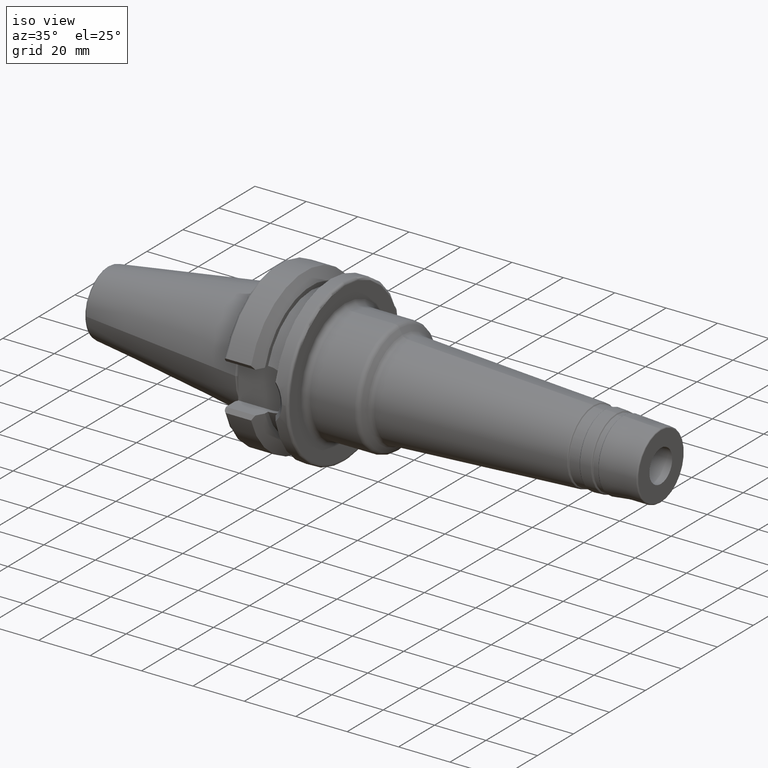
[diagram: clean part render]
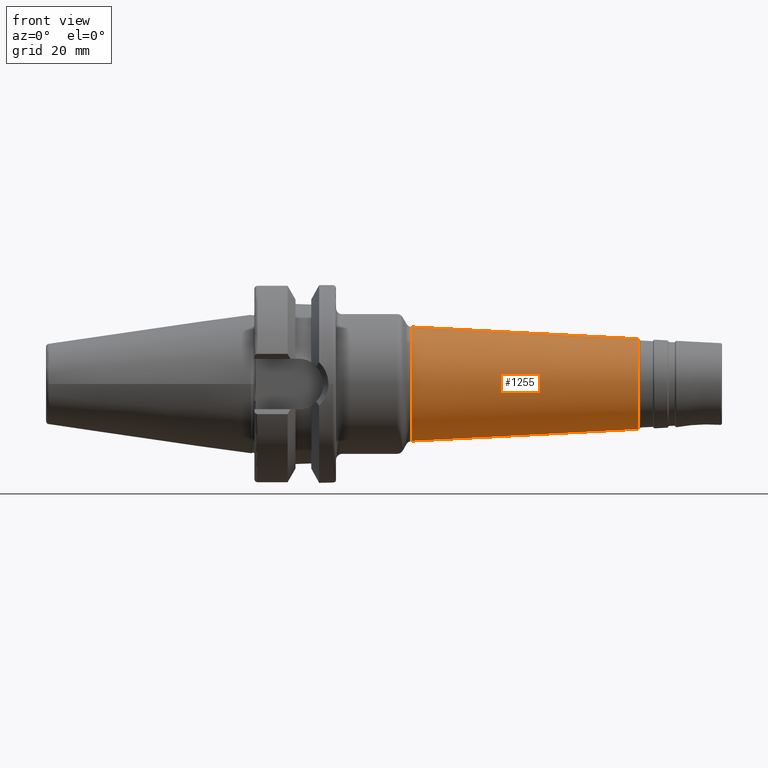
[diagram: tour spotlight — one face highlighted and labeled with its STEP entity id]
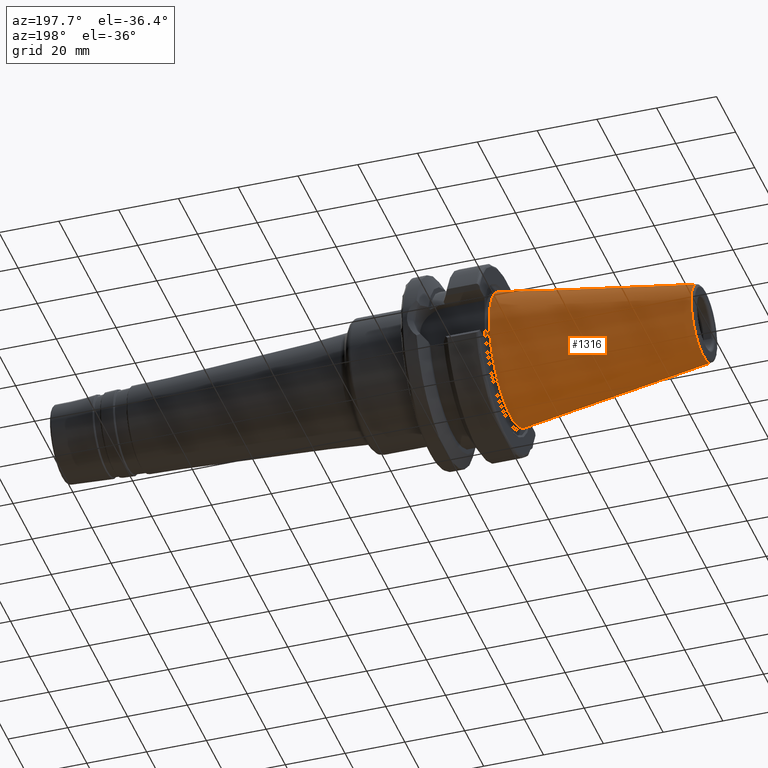
[diagram: tour spotlight — one face highlighted and labeled with its STEP entity id]
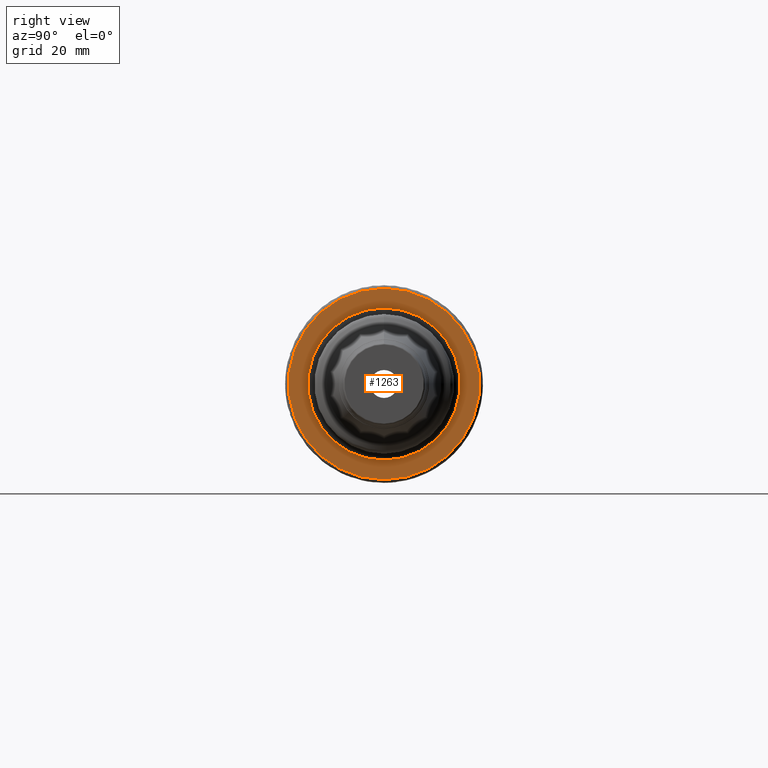
[diagram: tour spotlight — one face highlighted and labeled with its STEP entity id]
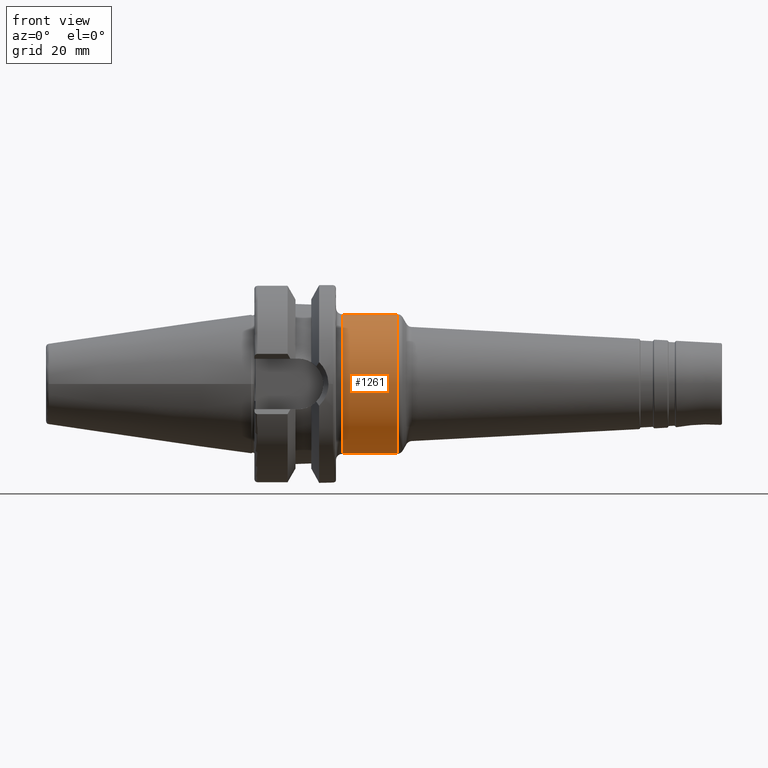
[diagram: tour spotlight — one face highlighted and labeled with its STEP entity id]
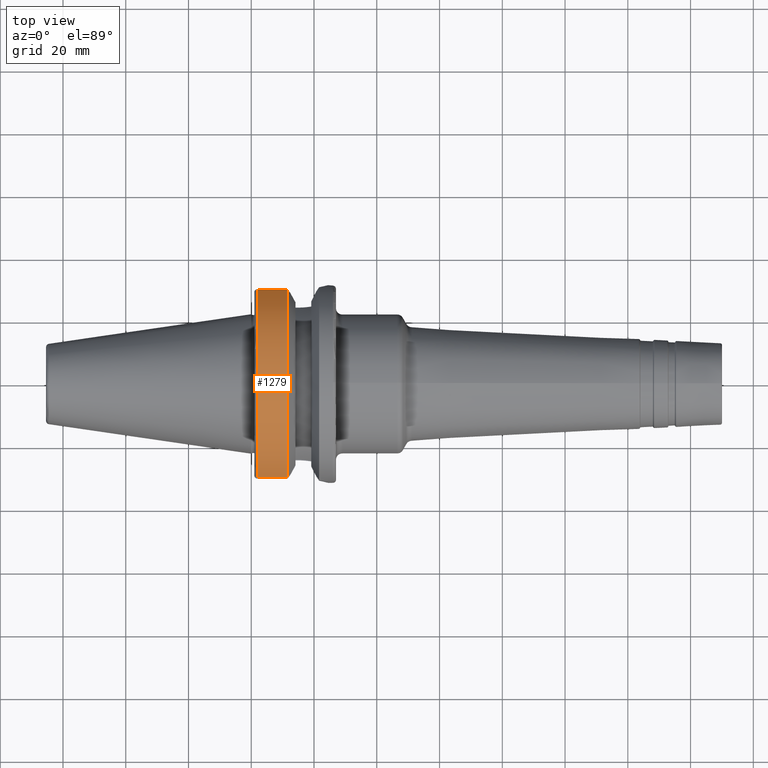
[diagram: tour spotlight — one face highlighted and labeled with its STEP entity id]
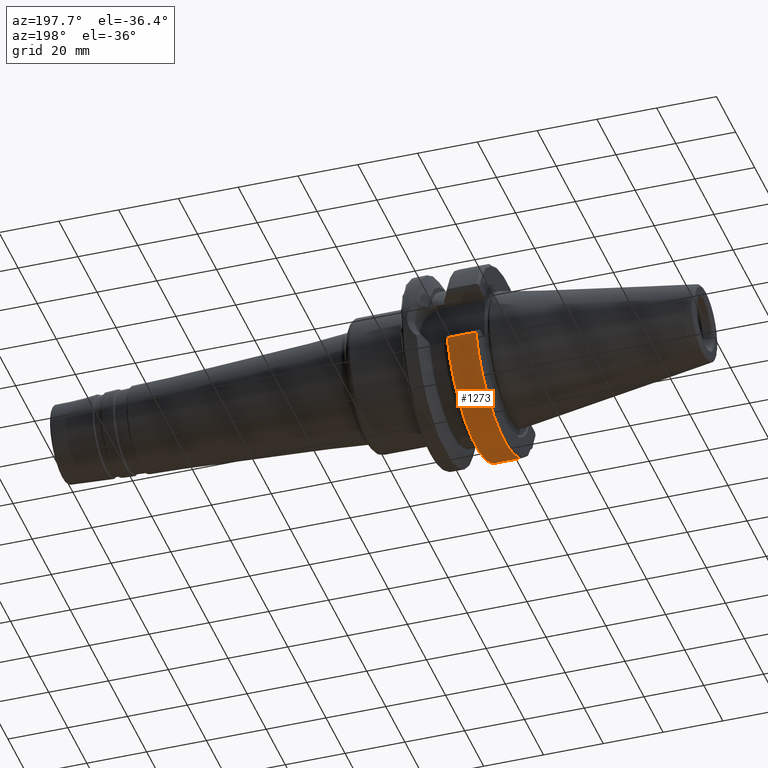
[diagram: tour spotlight — one face highlighted and labeled with its STEP entity id]
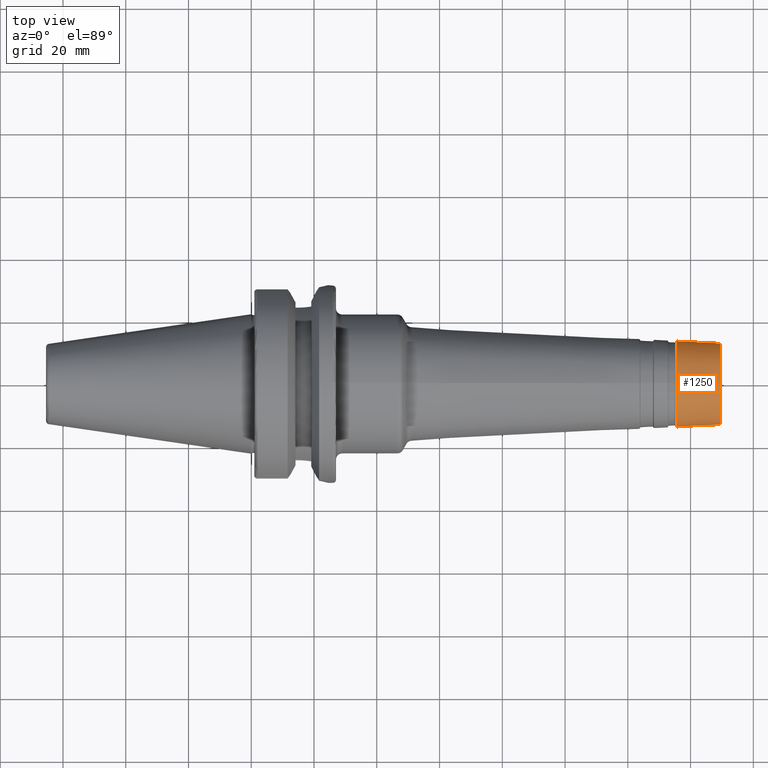
[diagram: tour spotlight — one face highlighted and labeled with its STEP entity id]
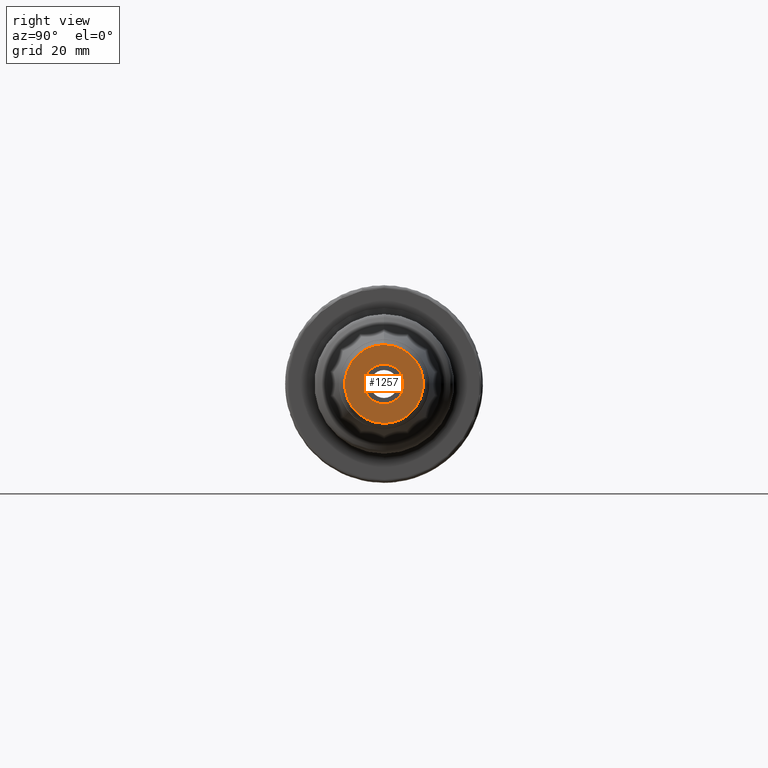
[diagram: tour spotlight — one face highlighted and labeled with its STEP entity id]
A machine part: a face-by-face anatomy tour. The part has 81 B-rep faces; the first image is the clean iso view, then the 8 largest visible faces are spotlighted one at a time (largest first), each with its STEP entity span.

Face 1 — front view, entity #1255. In plain terms, the highlighted conical surface has half-angle 3 deg.
Definition (entity closure, byte-faithful):
#104=LINE('',#1999,#173);
#173=VECTOR('',#1609,16.3081634099065);
#242=CONICAL_SURFACE('',#1384,16.3081634099065,0.0523598775598295);
#271=FACE_OUTER_BOUND('',#352,.T.);
#352=EDGE_LOOP('',(#895,#896,#897,#898));
#447=CIRCLE('',#1383,14.387635362879);
#448=CIRCLE('',#1385,18.1839457168278);
#532=VERTEX_POINT('',#1994);
#533=VERTEX_POINT('',#1998);
#668=EDGE_CURVE('',#532,#532,#447,.T.);
#669=EDGE_CURVE('',#532,#533,#104,.T.);
#670=EDGE_CURVE('',#533,#533,#448,.T.);
#895=ORIENTED_EDGE('',*,*,#668,.F.);
#896=ORIENTED_EDGE('',*,*,#669,.T.);
#897=ORIENTED_EDGE('',*,*,#670,.F.);
#898=ORIENTED_EDGE('',*,*,#669,.F.);
#1255=ADVANCED_FACE('',(#271),#242,.T.);
#1383=AXIS2_PLACEMENT_3D('',#1996,#1605,#1606);
#1384=AXIS2_PLACEMENT_3D('',#1997,#1607,#1608);
#1385=AXIS2_PLACEMENT_3D('',#2000,#1610,#1611);
#1605=DIRECTION('center_axis',(1.,0.,0.));
#1606=DIRECTION('ref_axis',(0.,0.,1.));
#1607=DIRECTION('center_axis',(-1.,0.,0.));
#1608=DIRECTION('ref_axis',(0.,0.,-1.));
#1609=DIRECTION('',(-0.998629534754574,-6.40930612932367E-18,0.0523359562429435));
#1610=DIRECTION('center_axis',(-1.,0.,0.));
#1611=DIRECTION('ref_axis',(0.,0.,1.));
#1994=CARTESIAN_POINT('',(123.522339968181,-1.7619771594449E-15,14.387635362879));
#1996=CARTESIAN_POINT('Origin',(123.522339968181,-1.7619771594449E-15,0.));
#1997=CARTESIAN_POINT('Origin',(86.8764817902327,0.,0.));
#1998=CARTESIAN_POINT('',(51.0844231954446,-2.22689109179824E-15,18.1839457168278));
#1999=CARTESIAN_POINT('',(86.8764817902327,-1.9971740119914E-15,16.3081634099065));
#2000=CARTESIAN_POINT('Origin',(51.0844231954446,-2.22689109179824E-15,
0.));

Face 2 — auxiliary view, entity #1316. In plain terms, the highlighted conical surface has half-angle 8.297 deg.
Definition (entity closure, byte-faithful):
#162=LINE('',#2567,#231);
#231=VECTOR('',#1913,17.5186442890469);
#253=CONICAL_SURFACE('',#1506,17.5186442890469,0.144812498238939);
#332=FACE_OUTER_BOUND('',#419,.T.);
#419=EDGE_LOOP('',(#1200,#1201,#1202,#1203,#1204));
#508=CIRCLE('',#1503,12.8122885780937);
#509=CIRCLE('',#1504,12.8122885780937);
#511=CIRCLE('',#1507,22.225);
#630=VERTEX_POINT('',#2559);
#631=VERTEX_POINT('',#2560);
#632=VERTEX_POINT('',#2565);
#820=EDGE_CURVE('',#630,#631,#508,.T.);
#821=EDGE_CURVE('',#631,#630,#509,.T.);
#823=EDGE_CURVE('',#632,#632,#511,.T.);
#824=EDGE_CURVE('',#632,#630,#162,.T.);
#1200=ORIENTED_EDGE('',*,*,#823,.F.);
#1201=ORIENTED_EDGE('',*,*,#824,.T.);
#1202=ORIENTED_EDGE('',*,*,#820,.T.);
#1203=ORIENTED_EDGE('',*,*,#821,.T.);
#1204=ORIENTED_EDGE('',*,*,#824,.F.);
#1316=ADVANCED_FACE('',(#332),#253,.T.);
#1503=AXIS2_PLACEMENT_3D('',#2561,#1903,#1904);
#1504=AXIS2_PLACEMENT_3D('',#2562,#1905,#1906);
#1506=AXIS2_PLACEMENT_3D('',#2564,#1909,#1910);
#1507=AXIS2_PLACEMENT_3D('',#2566,#1911,#1912);
#1903=DIRECTION('center_axis',(1.,0.,0.));
#1904=DIRECTION('ref_axis',(0.,0.,-1.));
#1905=DIRECTION('center_axis',(1.,0.,0.));
#1906=DIRECTION('ref_axis',(0.,0.,-1.));
#1909=DIRECTION('center_axis',(1.,0.,0.));
#1910=DIRECTION('ref_axis',(0.,1.,0.));
#1911=DIRECTION('center_axis',(1.,0.,0.));
#1912=DIRECTION('ref_axis',(0.,0.,-1.));
#1913=DIRECTION('',(-0.989532981063281,0.144306893071729,1.76724974695192E-17));
#2559=CARTESIAN_POINT('',(-64.5443068930717,-12.8122885780937,-1.56905281969147E-15));
#2560=CARTESIAN_POINT('',(-64.5443068930717,-1.56905281969147E-15,12.8122885780937));
#2561=CARTESIAN_POINT('Origin',(-64.5443068930717,0.,0.));
#2562=CARTESIAN_POINT('Origin',(-64.5443068930717,0.,0.));
#2564=CARTESIAN_POINT('Origin',(-32.2721534465359,0.,0.));
#2565=CARTESIAN_POINT('',(4.44089209850063E-15,-22.225,-2.72177751110499E-15));
#2566=CARTESIAN_POINT('Origin',(0.,0.,0.));
#2567=CARTESIAN_POINT('',(-32.2721534465359,-17.5186442890469,-2.14541516539823E-15));

Face 3 — right view, entity #1263. In plain terms, the highlighted planar face has unit normal (1, 0, 0).
Definition (entity closure, byte-faithful):
#67=FACE_BOUND('',#362,.T.);
#73=PLANE('',#1405);
#279=FACE_OUTER_BOUND('',#361,.T.);
#361=EDGE_LOOP('',(#927));
#362=EDGE_LOOP('',(#928));
#460=CIRCLE('',#1404,24.25);
#461=CIRCLE('',#1406,30.5);
#541=VERTEX_POINT('',#2027);
#542=VERTEX_POINT('',#2031);
#684=EDGE_CURVE('',#541,#541,#460,.T.);
#685=EDGE_CURVE('',#542,#542,#461,.T.);
#927=ORIENTED_EDGE('',*,*,#685,.T.);
#928=ORIENTED_EDGE('',*,*,#684,.F.);
#1263=ADVANCED_FACE('',(#279,#67),#73,.T.);
#1404=AXIS2_PLACEMENT_3D('',#2029,#1650,#1651);
#1405=AXIS2_PLACEMENT_3D('',#2030,#1652,#1653);
#1406=AXIS2_PLACEMENT_3D('',#2032,#1654,#1655);
#1650=DIRECTION('center_axis',(1.,0.,0.));
#1651=DIRECTION('ref_axis',(0.,-1.22464679914735E-16,1.));
#1652=DIRECTION('center_axis',(1.,0.,0.));
#1653=DIRECTION('ref_axis',(0.,0.,-1.));
#1654=DIRECTION('center_axis',(1.,0.,0.));
#1655=DIRECTION('ref_axis',(0.,0.,-1.));
#2027=CARTESIAN_POINT('',(27.,5.93953697586466E-15,-24.25));
#2029=CARTESIAN_POINT('Origin',(27.,0.,0.));
#2030=CARTESIAN_POINT('Origin',(27.,0.,0.));
#2031=CARTESIAN_POINT('',(27.,-3.73517273739943E-15,30.5));
#2032=CARTESIAN_POINT('Origin',(27.,0.,0.));

Face 4 — front view, entity #1261. In plain terms, the highlighted cylindrical surface (bore or boss wall) has radius 22.25 mm, axis along (1, 0, 0).
Definition (entity closure, byte-faithful):
#50=CYLINDRICAL_SURFACE('',#1399,22.25);
#106=LINE('',#2022,#175);
#175=VECTOR('',#1641,22.25);
#277=FACE_OUTER_BOUND('',#359,.T.);
#359=EDGE_LOOP('',(#917,#918,#919,#920,#921));
#456=CIRCLE('',#1398,22.25);
#457=CIRCLE('',#1400,22.25);
#458=CIRCLE('',#1401,22.25);
#538=VERTEX_POINT('',#2017);
#539=VERTEX_POINT('',#2021);
#540=VERTEX_POINT('',#2023);
#679=EDGE_CURVE('',#538,#538,#456,.T.);
#680=EDGE_CURVE('',#538,#539,#106,.T.);
#681=EDGE_CURVE('',#540,#539,#457,.T.);
#682=EDGE_CURVE('',#539,#540,#458,.T.);
#917=ORIENTED_EDGE('',*,*,#679,.F.);
#918=ORIENTED_EDGE('',*,*,#680,.T.);
#919=ORIENTED_EDGE('',*,*,#681,.F.);
#920=ORIENTED_EDGE('',*,*,#682,.F.);
#921=ORIENTED_EDGE('',*,*,#680,.F.);
#1261=ADVANCED_FACE('',(#277),#50,.T.);
#1398=AXIS2_PLACEMENT_3D('',#2019,#1637,#1638);
#1399=AXIS2_PLACEMENT_3D('',#2020,#1639,#1640);
#1400=AXIS2_PLACEMENT_3D('',#2024,#1642,#1643);
#1401=AXIS2_PLACEMENT_3D('',#2025,#1644,#1645);
#1637=DIRECTION('center_axis',(1.,0.,0.));
#1638=DIRECTION('ref_axis',(0.,1.22464679914735E-16,1.));
#1639=DIRECTION('center_axis',(1.,0.,0.));
#1640=DIRECTION('ref_axis',(0.,0.,-1.));
#1641=DIRECTION('',(-1.,0.,0.));
#1642=DIRECTION('center_axis',(-1.,0.,0.));
#1643=DIRECTION('ref_axis',(0.,-1.22464679914735E-16,1.));
#1644=DIRECTION('center_axis',(-1.,0.,0.));
#1645=DIRECTION('ref_axis',(0.,-1.22464679914735E-16,1.));
#2017=CARTESIAN_POINT('',(46.5305740192861,-2.72483912810286E-15,22.25));
#2019=CARTESIAN_POINT('Origin',(46.5305740192861,0.,0.));
#2020=CARTESIAN_POINT('Origin',(37.3426372788327,0.,0.));
#2021=CARTESIAN_POINT('',(29.,-2.72483912810286E-15,22.25));
#2022=CARTESIAN_POINT('',(37.3426372788327,-2.72483912810286E-15,22.25));
#2023=CARTESIAN_POINT('',(29.,0.,-22.25));
#2024=CARTESIAN_POINT('Origin',(29.,0.,0.));
#2025=CARTESIAN_POINT('Origin',(29.,0.,0.));

Face 5 — top view, entity #1279. In plain terms, the highlighted cylindrical surface (partial cylindrical patch) has radius 31.5 mm, axis along (1, 0, 0).
Definition (entity closure, byte-faithful):
#56=CYLINDRICAL_SURFACE('',#1439,31.5);
#118=LINE('',#2247,#187);
#124=LINE('',#2288,#193);
#187=VECTOR('',#1721,10.);
#193=VECTOR('',#1741,10.);
#295=FACE_OUTER_BOUND('',#380,.T.);
#380=EDGE_LOOP('',(#1000,#1001,#1002,#1003));
#479=CIRCLE('',#1438,31.5);
#480=CIRCLE('',#1440,31.5000000000001);
#573=VERTEX_POINT('',#2242);
#574=VERTEX_POINT('',#2246);
#581=VERTEX_POINT('',#2273);
#582=VERTEX_POINT('',#2286);
#725=EDGE_CURVE('',#573,#574,#118,.T.);
#734=EDGE_CURVE('',#581,#574,#479,.T.);
#736=EDGE_CURVE('',#582,#573,#480,.T.);
#737=EDGE_CURVE('',#581,#582,#124,.T.);
#1000=ORIENTED_EDGE('',*,*,#725,.F.);
#1001=ORIENTED_EDGE('',*,*,#736,.F.);
#1002=ORIENTED_EDGE('',*,*,#737,.F.);
#1003=ORIENTED_EDGE('',*,*,#734,.T.);
#1279=ADVANCED_FACE('',(#295),#56,.T.);
#1438=AXIS2_PLACEMENT_3D('',#2274,#1735,#1736);
#1439=AXIS2_PLACEMENT_3D('',#2285,#1737,#1738);
#1440=AXIS2_PLACEMENT_3D('',#2287,#1739,#1740);
#1721=DIRECTION('',(-1.,0.,0.));
#1735=DIRECTION('center_axis',(1.,0.,0.));
#1736=DIRECTION('ref_axis',(0.,0.,-1.));
#1737=DIRECTION('center_axis',(1.,0.,0.));
#1738=DIRECTION('ref_axis',(0.,1.,0.));
#1739=DIRECTION('center_axis',(1.,0.,0.));
#1740=DIRECTION('ref_axis',(0.,0.,-1.));
#1741=DIRECTION('',(1.,0.,0.));
#2242=CARTESIAN_POINT('',(11.5690363073381,-30.0059801089944,9.58598757033588));
#2246=CARTESIAN_POINT('',(1.99999999999999,-30.0059801089944,9.58598757033586));
#2247=CARTESIAN_POINT('',(6.78451815366905,-30.0059801089944,9.58598757033587));
#2273=CARTESIAN_POINT('',(1.99999999999999,30.0059801089944,9.58598757033586));
#2274=CARTESIAN_POINT('Origin',(1.99999999999999,0.,0.));
#2285=CARTESIAN_POINT('Origin',(6.78451815366905,0.,0.));
#2286=CARTESIAN_POINT('',(11.5690363073381,30.0059801089944,9.58598757033588));
#2287=CARTESIAN_POINT('Origin',(11.5690363073381,0.,0.));
#2288=CARTESIAN_POINT('',(6.78451815366905,30.0059801089944,9.58598757033587));

Face 6 — auxiliary view, entity #1273. In plain terms, the highlighted cylindrical surface (partial cylindrical patch) has radius 31.5 mm, axis along (1, 0, 0).
Definition (entity closure, byte-faithful):
#55=CYLINDRICAL_SURFACE('',#1426,31.5);
#111=LINE('',#2205,#180);
#114=LINE('',#2217,#183);
#180=VECTOR('',#1698,10.);
#183=VECTOR('',#1705,10.);
#289=FACE_OUTER_BOUND('',#374,.T.);
#374=EDGE_LOOP('',(#971,#972,#973,#974));
#473=CIRCLE('',#1427,31.5);
#474=CIRCLE('',#1428,31.5000000000001);
#562=VERTEX_POINT('',#2193);
#563=VERTEX_POINT('',#2204);
#566=VERTEX_POINT('',#2214);
#567=VERTEX_POINT('',#2216);
#711=EDGE_CURVE('',#562,#563,#111,.T.);
#715=EDGE_CURVE('',#562,#566,#473,.T.);
#716=EDGE_CURVE('',#567,#566,#114,.T.);
#717=EDGE_CURVE('',#563,#567,#474,.T.);
#971=ORIENTED_EDGE('',*,*,#711,.F.);
#972=ORIENTED_EDGE('',*,*,#715,.T.);
#973=ORIENTED_EDGE('',*,*,#716,.F.);
#974=ORIENTED_EDGE('',*,*,#717,.F.);
#1273=ADVANCED_FACE('',(#289),#55,.T.);
#1426=AXIS2_PLACEMENT_3D('',#2213,#1701,#1702);
#1427=AXIS2_PLACEMENT_3D('',#2215,#1703,#1704);
#1428=AXIS2_PLACEMENT_3D('',#2218,#1706,#1707);
#1698=DIRECTION('',(1.,0.,0.));
#1701=DIRECTION('center_axis',(1.,0.,0.));
#1702=DIRECTION('ref_axis',(0.,1.,0.));
#1703=DIRECTION('center_axis',(1.,0.,0.));
#1704=DIRECTION('ref_axis',(0.,0.,-1.));
#1705=DIRECTION('',(-1.,0.,0.));
#1706=DIRECTION('center_axis',(1.,0.,0.));
#1707=DIRECTION('ref_axis',(0.,0.,-1.));
#2193=CARTESIAN_POINT('',(1.99999999999999,-30.0059801089944,-9.58598757033586));
#2204=CARTESIAN_POINT('',(11.5690363073381,-30.0059801089944,-9.58598757033588));
#2205=CARTESIAN_POINT('',(6.78451815366905,-30.0059801089944,-9.58598757033587));
#2213=CARTESIAN_POINT('Origin',(6.78451815366905,0.,0.));
#2214=CARTESIAN_POINT('',(1.99999999999999,30.0059801089944,-9.58598757033586));
#2215=CARTESIAN_POINT('Origin',(1.99999999999999,0.,0.));
#2216=CARTESIAN_POINT('',(11.5690363073381,30.0059801089944,-9.58598757033588));
#2217=CARTESIAN_POINT('',(6.78451815366905,30.0059801089944,-9.58598757033587));
#2218=CARTESIAN_POINT('Origin',(11.5690363073381,0.,0.));

Face 7 — top view, entity #1250. In plain terms, the highlighted conical surface has half-angle 3 deg.
Definition (entity closure, byte-faithful):
#102=LINE('',#1982,#171);
#171=VECTOR('',#1585,13.3848185972057);
#240=CONICAL_SURFACE('',#1372,13.3848185972057,0.0523598775598298);
#266=FACE_OUTER_BOUND('',#347,.T.);
#347=EDGE_LOOP('',(#875,#876,#877,#878));
#439=CIRCLE('',#1370,13.7575507230413);
#441=CIRCLE('',#1373,13.0248324840198);
#528=VERTEX_POINT('',#1976);
#529=VERTEX_POINT('',#1980);
#658=EDGE_CURVE('',#528,#528,#439,.T.);
#660=EDGE_CURVE('',#529,#529,#441,.T.);
#661=EDGE_CURVE('',#529,#528,#102,.T.);
#875=ORIENTED_EDGE('',*,*,#660,.F.);
#876=ORIENTED_EDGE('',*,*,#661,.T.);
#877=ORIENTED_EDGE('',*,*,#658,.F.);
#878=ORIENTED_EDGE('',*,*,#661,.F.);
#1250=ADVANCED_FACE('',(#266),#240,.T.);
#1370=AXIS2_PLACEMENT_3D('',#1977,#1577,#1578);
#1372=AXIS2_PLACEMENT_3D('',#1979,#1581,#1582);
#1373=AXIS2_PLACEMENT_3D('',#1981,#1583,#1584);
#1577=DIRECTION('center_axis',(-1.,0.,0.));
#1578=DIRECTION('ref_axis',(0.,0.,1.));
#1581=DIRECTION('center_axis',(-1.,0.,0.));
#1582=DIRECTION('ref_axis',(0.,0.,-1.));
#1583=DIRECTION('center_axis',(1.,0.,0.));
#1584=DIRECTION('ref_axis',(0.,0.,1.));
#1585=DIRECTION('',(-0.998629534754574,-6.4093061293237E-18,0.0523359562429437));
#1976=CARTESIAN_POINT('',(135.545071105762,-1.68481404570799E-15,13.7575507230413));
#1977=CARTESIAN_POINT('Origin',(135.545071105762,-1.68481404570799E-15,
0.));
#1979=CARTESIAN_POINT('Origin',(142.657223746739,0.,0.));
#1980=CARTESIAN_POINT('',(149.526167978121,-1.59508194109854E-15,13.0248324840198));
#1981=CARTESIAN_POINT('Origin',(149.526167978121,-1.59508194109854E-15,
0.));
#1982=CARTESIAN_POINT('',(142.657223746739,-1.63916752522359E-15,13.3848185972057));

Face 8 — right view, entity #1257. In plain terms, the highlighted planar face has unit normal (1, 0, 0).
Definition (entity closure, byte-faithful):
#66=FACE_BOUND('',#355,.T.);
#72=PLANE('',#1389);
#273=FACE_OUTER_BOUND('',#354,.T.);
#354=EDGE_LOOP('',(#903));
#355=EDGE_LOOP('',(#904));
#449=CIRCLE('',#1387,12.5255177166426);
#451=CIRCLE('',#1390,6.35);
#534=VERTEX_POINT('',#2002);
#535=VERTEX_POINT('',#2006);
#671=EDGE_CURVE('',#534,#534,#449,.T.);
#673=EDGE_CURVE('',#535,#535,#451,.T.);
#903=ORIENTED_EDGE('',*,*,#671,.F.);
#904=ORIENTED_EDGE('',*,*,#673,.F.);
#1257=ADVANCED_FACE('',(#273,#66),#72,.T.);
#1387=AXIS2_PLACEMENT_3D('',#2003,#1614,#1615);
#1389=AXIS2_PLACEMENT_3D('',#2005,#1618,#1619);
#1390=AXIS2_PLACEMENT_3D('',#2007,#1620,#1621);
#1614=DIRECTION('center_axis',(-1.,0.,0.));
#1615=DIRECTION('ref_axis',(0.,1.22464679914735E-16,1.));
#1618=DIRECTION('center_axis',(1.,0.,0.));
#1619=DIRECTION('ref_axis',(0.,0.,-1.));
#1620=DIRECTION('center_axis',(1.,0.,0.));
#1621=DIRECTION('ref_axis',(0.,0.,-1.));
#2002=CARTESIAN_POINT('',(150.,-1.53393351793498E-15,12.5255177166426));
#2003=CARTESIAN_POINT('Origin',(150.,0.,0.));
#2005=CARTESIAN_POINT('Origin',(150.,0.,-6.35));
#2006=CARTESIAN_POINT('',(150.,-7.77650717458569E-16,6.35));
#2007=CARTESIAN_POINT('Origin',(150.,0.,0.));